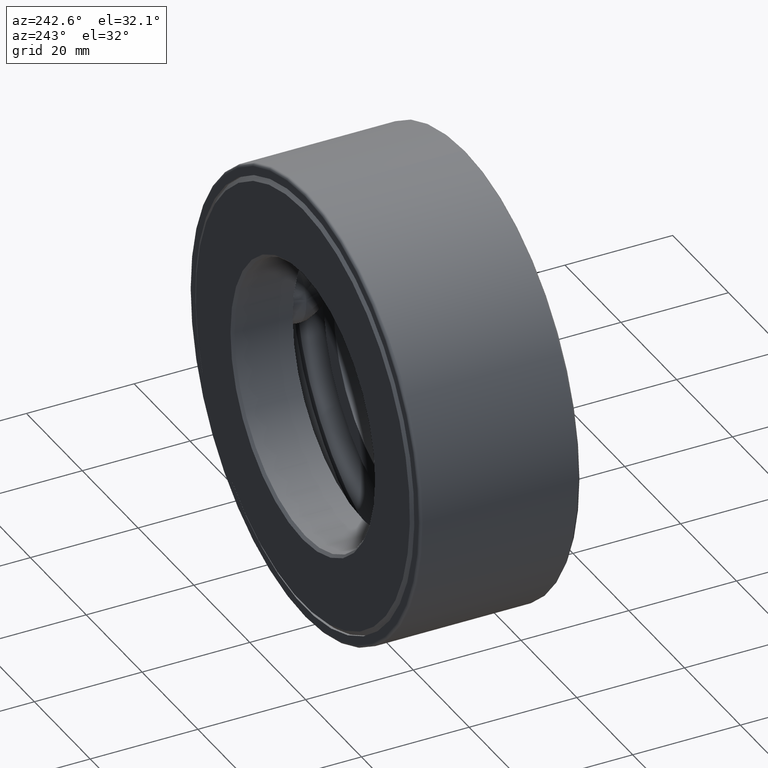
[diagram: clean part render]
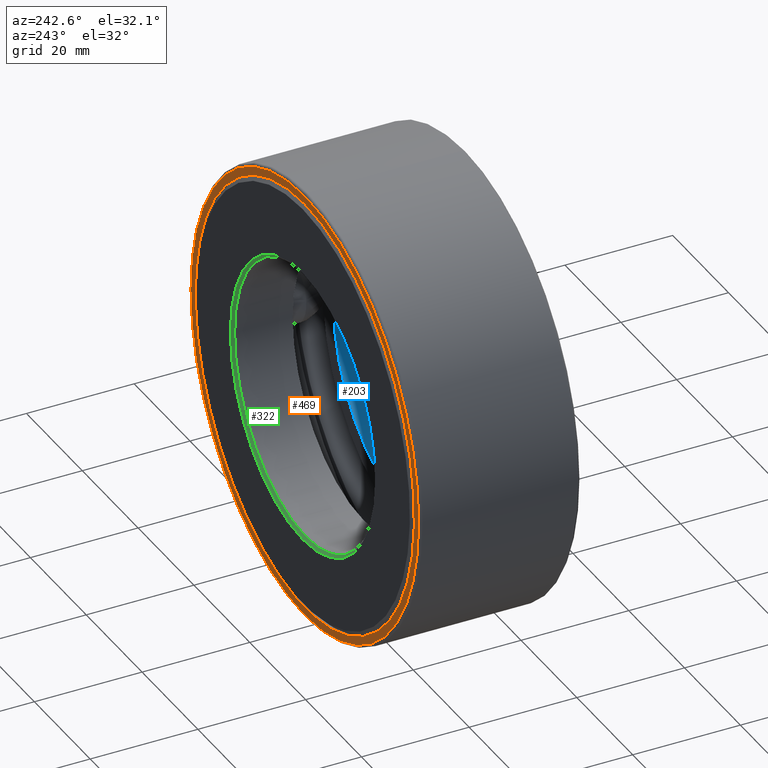
[diagram: same view with three faces highlighted in distinct colors, each labeled with its STEP entity id]
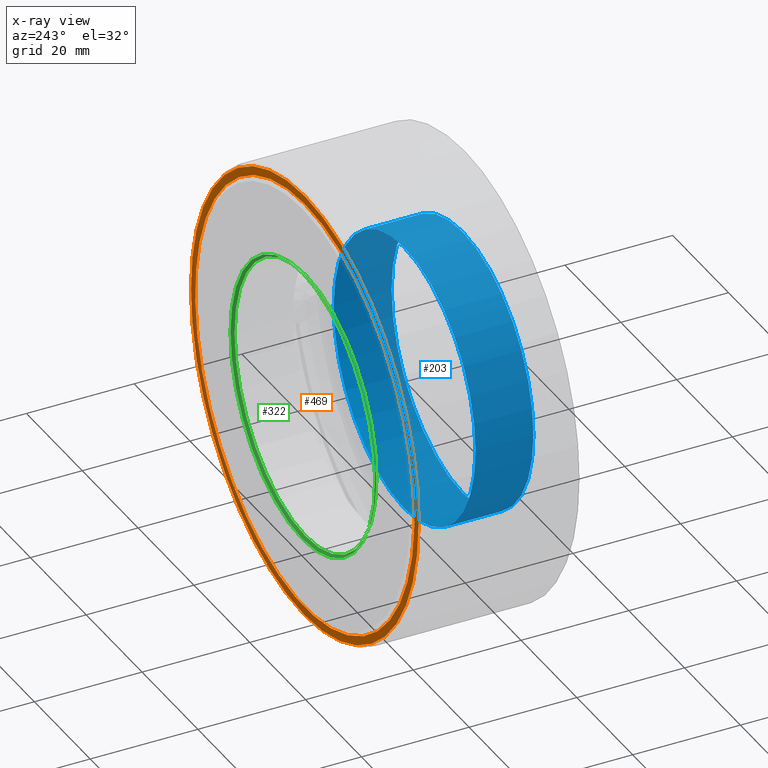
[diagram: x-ray of the same camera — body ghosted, the three highlighted faces saturated]
A machine part, auxiliary view with three faces highlighted in distinct colors.
The next image is the same camera in x-ray (body ghosted, the three faces saturated) — at least one of them is partly hidden behind the body in this view.
Their STEP definitions:

[orange] entity #469 — the highlighted planar face has unit normal (0, -1, 0).
#9 = ORIENTED_EDGE ( 'NONE', *, *, #503, .F. ) ;
#32 = VERTEX_POINT ( 'NONE', #490 ) ;
#38 = CARTESIAN_POINT ( 'NONE',  ( 0.0000000000000000000, 1.172499999999999900, 1.545000000000000200 ) ) ;
#82 = CIRCLE ( 'NONE', #161, 1.605000000000000000 ) ;
#104 = DIRECTION ( 'NONE',  ( 0.0000000000000000000, 0.0000000000000000000, 1.000000000000000000 ) ) ;
#115 = DIRECTION ( 'NONE',  ( 0.0000000000000000000, 0.0000000000000000000, 1.000000000000000000 ) ) ;
#161 = AXIS2_PLACEMENT_3D ( 'NONE', #421, #512, #104 ) ;
#166 = FACE_BOUND ( 'NONE', #186, .T. ) ;
#186 = EDGE_LOOP ( 'NONE', ( #9 ) ) ;
#224 = CIRCLE ( 'NONE', #398, 1.545000000000000200 ) ;
#233 = FACE_OUTER_BOUND ( 'NONE', #603, .T. ) ;
#286 = DIRECTION ( 'NONE',  ( -0.0000000000000000000, 1.000000000000000000, -0.0000000000000000000 ) ) ;
#336 = CARTESIAN_POINT ( 'NONE',  ( 0.0000000000000000000, 1.172499999999999900, 0.0000000000000000000 ) ) ;
#379 = DIRECTION ( 'NONE',  ( 0.0000000000000000000, -0.0000000000000000000, -1.000000000000000000 ) ) ;
#382 = PLANE ( 'NONE',  #414 ) ;
#385 = CARTESIAN_POINT ( 'NONE',  ( 0.0000000000000000000, 1.172499999999999900, 0.0000000000000000000 ) ) ;
#398 = AXIS2_PLACEMENT_3D ( 'NONE', #336, #286, #115 ) ;
#414 = AXIS2_PLACEMENT_3D ( 'NONE', #385, #578, #379 ) ;
#421 = CARTESIAN_POINT ( 'NONE',  ( 0.0000000000000000000, 1.172499999999999900, 0.0000000000000000000 ) ) ;
#435 = ORIENTED_EDGE ( 'NONE', *, *, #552, .T. ) ;
#469 = ADVANCED_FACE ( 'NONE', ( #166, #233 ), #382, .F. ) ;
#490 = CARTESIAN_POINT ( 'NONE',  ( 0.0000000000000000000, 1.172499999999999900, 1.605000000000000000 ) ) ;
#503 = EDGE_CURVE ( 'NONE', #563, #563, #224, .T. ) ;
#512 = DIRECTION ( 'NONE',  ( -0.0000000000000000000, 1.000000000000000000, -0.0000000000000000000 ) ) ;
#552 = EDGE_CURVE ( 'NONE', #32, #32, #82, .T. ) ;
#563 = VERTEX_POINT ( 'NONE', #38 ) ;
#578 = DIRECTION ( 'NONE',  ( 0.0000000000000000000, -1.000000000000000000, 0.0000000000000000000 ) ) ;
#603 = EDGE_LOOP ( 'NONE', ( #435 ) ) ;

[blue] entity #203 — the highlighted cylindrical surface (bore or boss wall) has radius 25.4 mm, axis along (-0, 1, -0).
#19 = DIRECTION ( 'NONE',  ( 0.0000000000000000000, 0.0000000000000000000, 1.000000000000000000 ) ) ;
#28 = FACE_OUTER_BOUND ( 'NONE', #402, .T. ) ;
#44 = VERTEX_POINT ( 'NONE', #544 ) ;
#47 = CYLINDRICAL_SURFACE ( 'NONE', #559, 1.000000000000000000 ) ;
#64 = EDGE_LOOP ( 'NONE', ( #364 ) ) ;
#124 = DIRECTION ( 'NONE',  ( -0.0000000000000000000, 1.000000000000000000, -0.0000000000000000000 ) ) ;
#143 = CARTESIAN_POINT ( 'NONE',  ( 0.0000000000000000000, 0.4437500000000001400, 0.0000000000000000000 ) ) ;
#199 = DIRECTION ( 'NONE',  ( 0.0000000000000000000, 0.0000000000000000000, 1.000000000000000000 ) ) ;
#203 = ADVANCED_FACE ( 'NONE', ( #598, #28 ), #47, .F. ) ;
#256 = CARTESIAN_POINT ( 'NONE',  ( 0.0000000000000000000, 0.02000000000000046900, 0.0000000000000000000 ) ) ;
#263 = CARTESIAN_POINT ( 'NONE',  ( 0.0000000000000000000, 0.02000000000000046900, 1.000000000000000000 ) ) ;
#266 = EDGE_CURVE ( 'NONE', #299, #299, #392, .T. ) ;
#299 = VERTEX_POINT ( 'NONE', #263 ) ;
#305 = DIRECTION ( 'NONE',  ( 0.0000000000000000000, 0.0000000000000000000, 1.000000000000000000 ) ) ;
#362 = ORIENTED_EDGE ( 'NONE', *, *, #410, .T. ) ;
#364 = ORIENTED_EDGE ( 'NONE', *, *, #266, .F. ) ;
#392 = CIRCLE ( 'NONE', #429, 1.000000000000000000 ) ;
#402 = EDGE_LOOP ( 'NONE', ( #362 ) ) ;
#410 = EDGE_CURVE ( 'NONE', #44, #44, #605, .T. ) ;
#415 = DIRECTION ( 'NONE',  ( -0.0000000000000000000, 1.000000000000000000, -0.0000000000000000000 ) ) ;
#429 = AXIS2_PLACEMENT_3D ( 'NONE', #256, #124, #305 ) ;
#522 = CARTESIAN_POINT ( 'NONE',  ( 0.0000000000000000000, 0.0000000000000000000, 0.0000000000000000000 ) ) ;
#544 = CARTESIAN_POINT ( 'NONE',  ( 0.0000000000000000000, 0.4437500000000001400, 1.000000000000000200 ) ) ;
#556 = AXIS2_PLACEMENT_3D ( 'NONE', #143, #415, #199 ) ;
#559 = AXIS2_PLACEMENT_3D ( 'NONE', #522, #582, #19 ) ;
#582 = DIRECTION ( 'NONE',  ( -0.0000000000000000000, 1.000000000000000000, -0.0000000000000000000 ) ) ;
#598 = FACE_OUTER_BOUND ( 'NONE', #64, .T. ) ;
#605 = CIRCLE ( 'NONE', #556, 1.000000000000000200 ) ;

[green] entity #322 — the highlighted conical surface has half-angle 45 deg.
#7 = EDGE_LOOP ( 'NONE', ( #156 ) ) ;
#31 = CARTESIAN_POINT ( 'NONE',  ( 0.0000000000000000000, 1.167499999999999500, 0.0000000000000000000 ) ) ;
#53 = VERTEX_POINT ( 'NONE', #152 ) ;
#152 = CARTESIAN_POINT ( 'NONE',  ( 0.0000000000000000000, 1.187500000000000000, 1.020000000000000200 ) ) ;
#156 = ORIENTED_EDGE ( 'NONE', *, *, #213, .T. ) ;
#170 = CIRCLE ( 'NONE', #275, 1.000000000000000200 ) ;
#183 = FACE_OUTER_BOUND ( 'NONE', #7, .T. ) ;
#195 = ORIENTED_EDGE ( 'NONE', *, *, #235, .F. ) ;
#213 = EDGE_CURVE ( 'NONE', #53, #53, #406, .T. ) ;
#214 = DIRECTION ( 'NONE',  ( 0.0000000000000000000, 0.0000000000000000000, 1.000000000000000000 ) ) ;
#235 = EDGE_CURVE ( 'NONE', #297, #297, #170, .T. ) ;
#275 = AXIS2_PLACEMENT_3D ( 'NONE', #31, #540, #545 ) ;
#288 = AXIS2_PLACEMENT_3D ( 'NONE', #440, #349, #214 ) ;
#297 = VERTEX_POINT ( 'NONE', #546 ) ;
#322 = ADVANCED_FACE ( 'NONE', ( #183, #558 ), #517, .F. ) ;
#349 = DIRECTION ( 'NONE',  ( -0.0000000000000000000, 1.000000000000000000, -0.0000000000000000000 ) ) ;
#396 = DIRECTION ( 'NONE',  ( -0.0000000000000000000, 1.000000000000000000, -0.0000000000000000000 ) ) ;
#406 = CIRCLE ( 'NONE', #576, 1.020000000000000200 ) ;
#420 = EDGE_LOOP ( 'NONE', ( #195 ) ) ;
#440 = CARTESIAN_POINT ( 'NONE',  ( 0.0000000000000000000, 1.167499999999999500, 0.0000000000000000000 ) ) ;
#486 = DIRECTION ( 'NONE',  ( 0.0000000000000000000, 0.0000000000000000000, 1.000000000000000000 ) ) ;
#517 = CONICAL_SURFACE ( 'NONE', #288, 1.000000000000000200, 0.7853981633974415100 ) ;
#530 = CARTESIAN_POINT ( 'NONE',  ( 0.0000000000000000000, 1.187500000000000000, 0.0000000000000000000 ) ) ;
#540 = DIRECTION ( 'NONE',  ( -0.0000000000000000000, 1.000000000000000000, -0.0000000000000000000 ) ) ;
#545 = DIRECTION ( 'NONE',  ( 0.0000000000000000000, 0.0000000000000000000, 1.000000000000000000 ) ) ;
#546 = CARTESIAN_POINT ( 'NONE',  ( 0.0000000000000000000, 1.167499999999999500, 1.000000000000000200 ) ) ;
#558 = FACE_BOUND ( 'NONE', #420, .T. ) ;
#576 = AXIS2_PLACEMENT_3D ( 'NONE', #530, #396, #486 ) ;